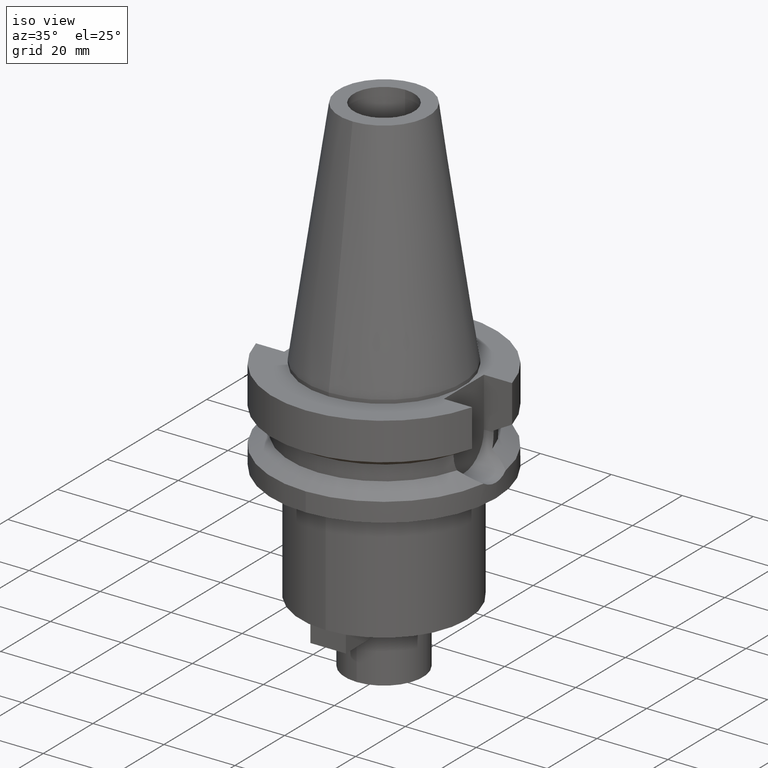
[diagram: clean part render]
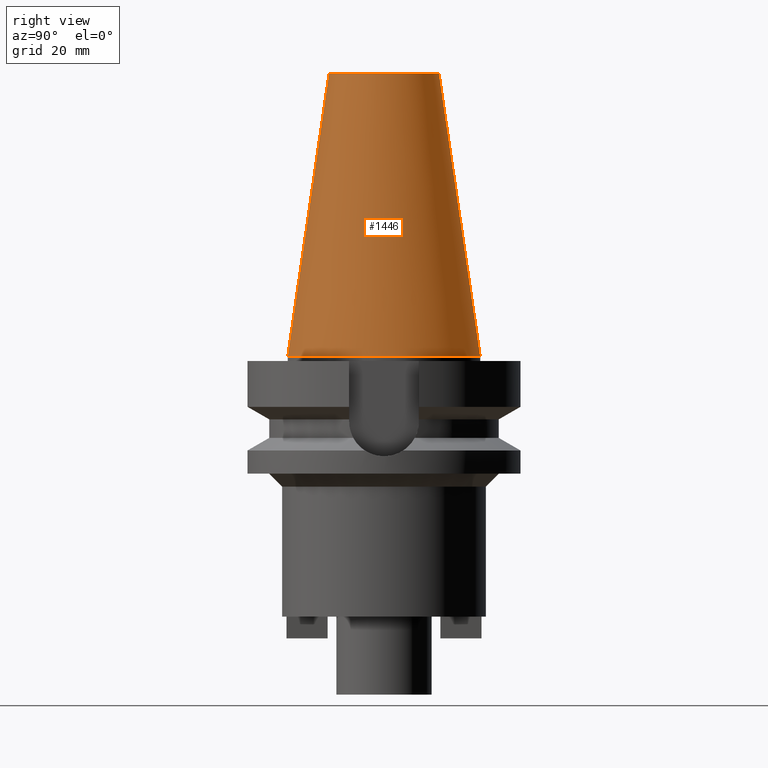
[diagram: tour spotlight — one face highlighted and labeled with its STEP entity id]
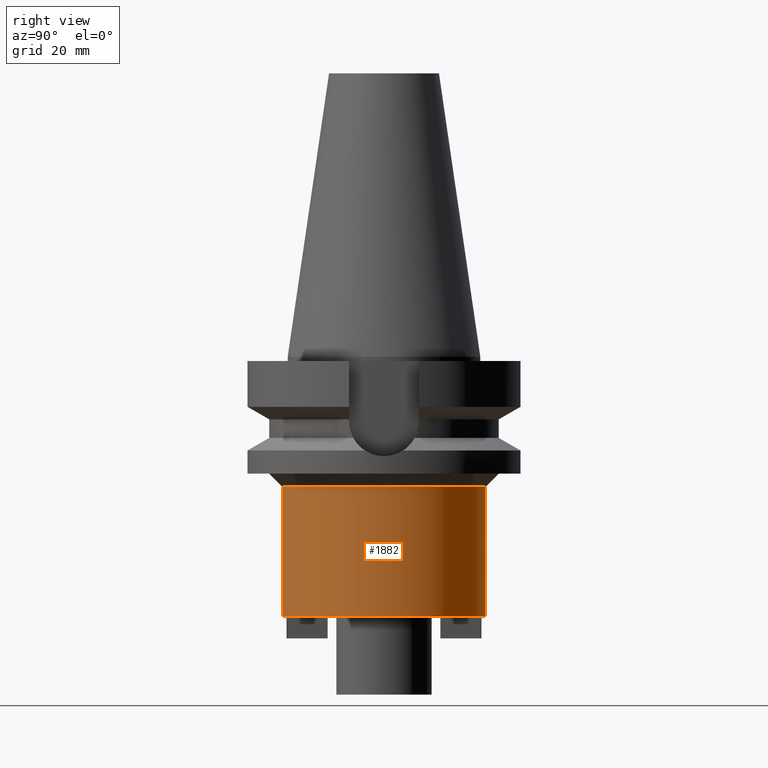
[diagram: tour spotlight — one face highlighted and labeled with its STEP entity id]
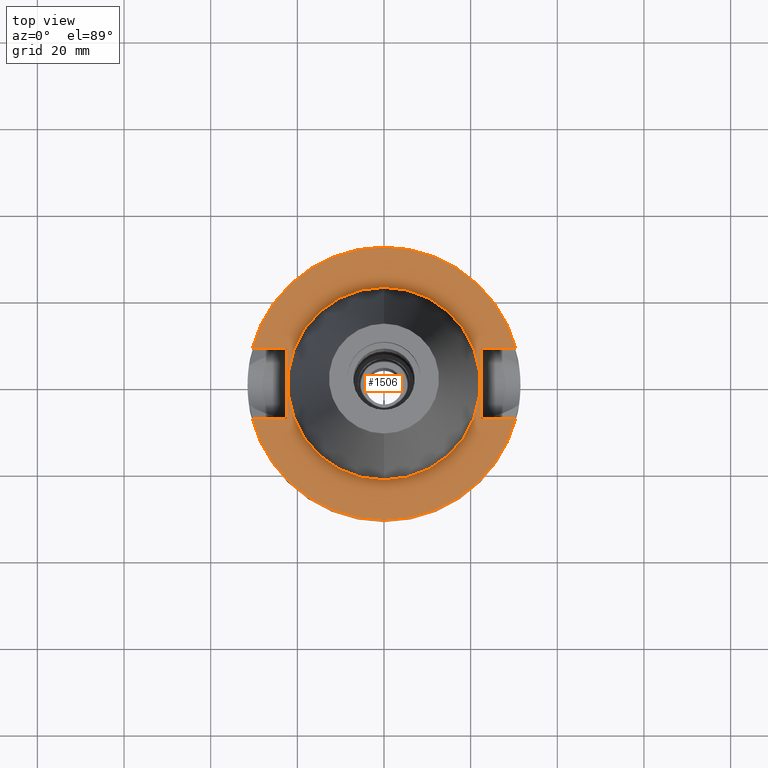
[diagram: tour spotlight — one face highlighted and labeled with its STEP entity id]
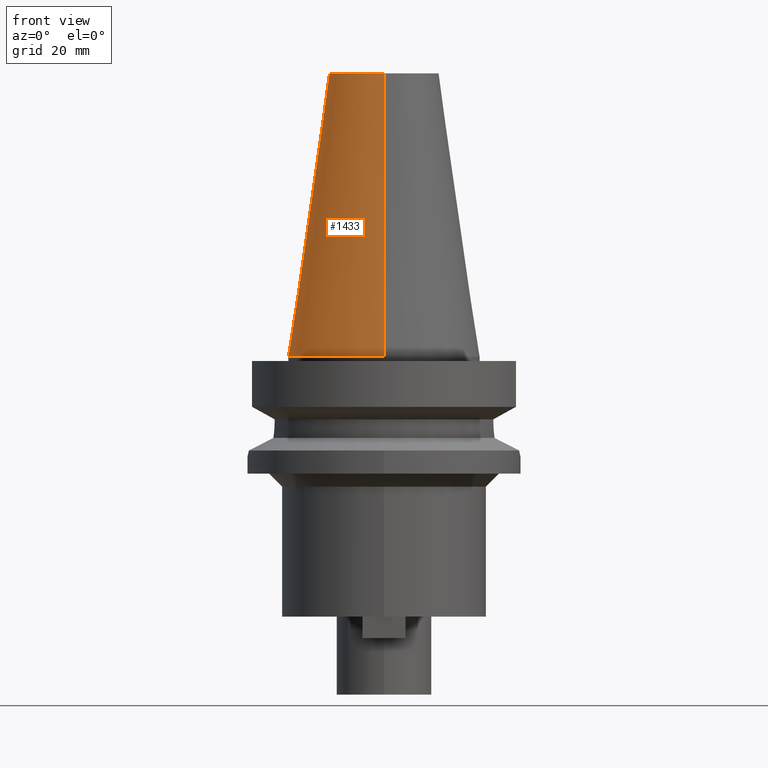
[diagram: tour spotlight — one face highlighted and labeled with its STEP entity id]
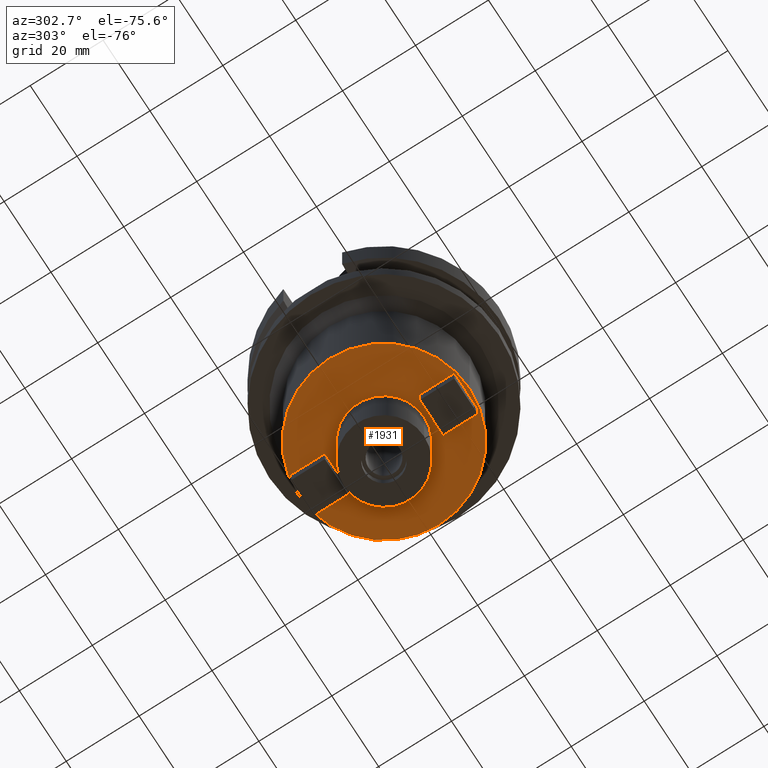
[diagram: tour spotlight — one face highlighted and labeled with its STEP entity id]
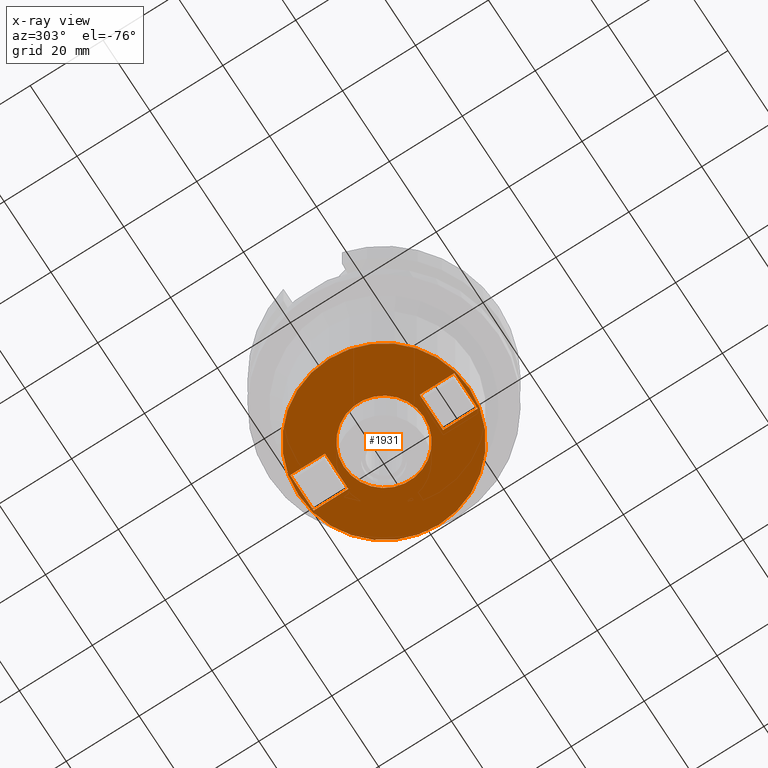
[diagram: x-ray of the same camera — body ghosted, this tour face saturated]
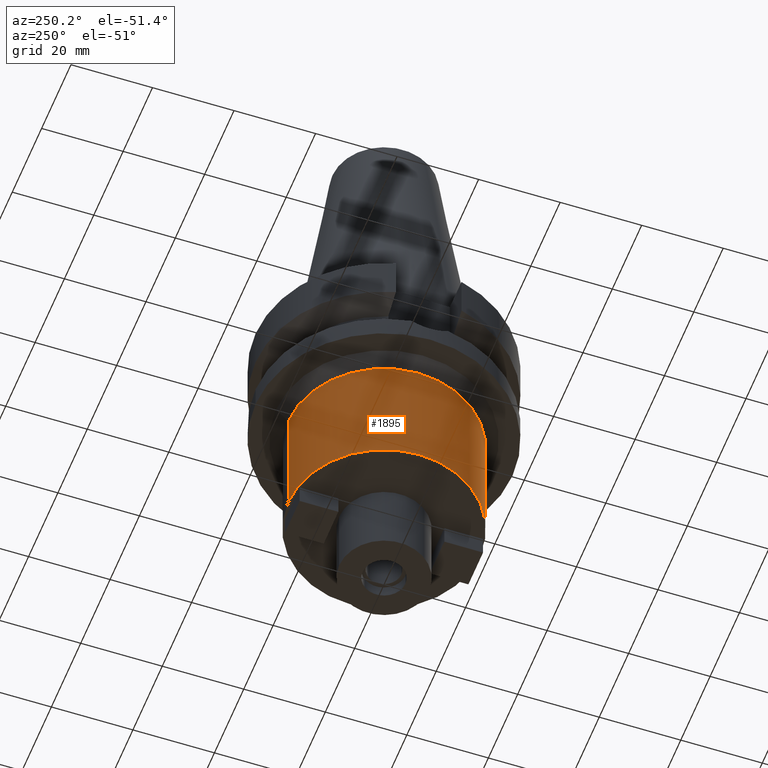
[diagram: tour spotlight — one face highlighted and labeled with its STEP entity id]
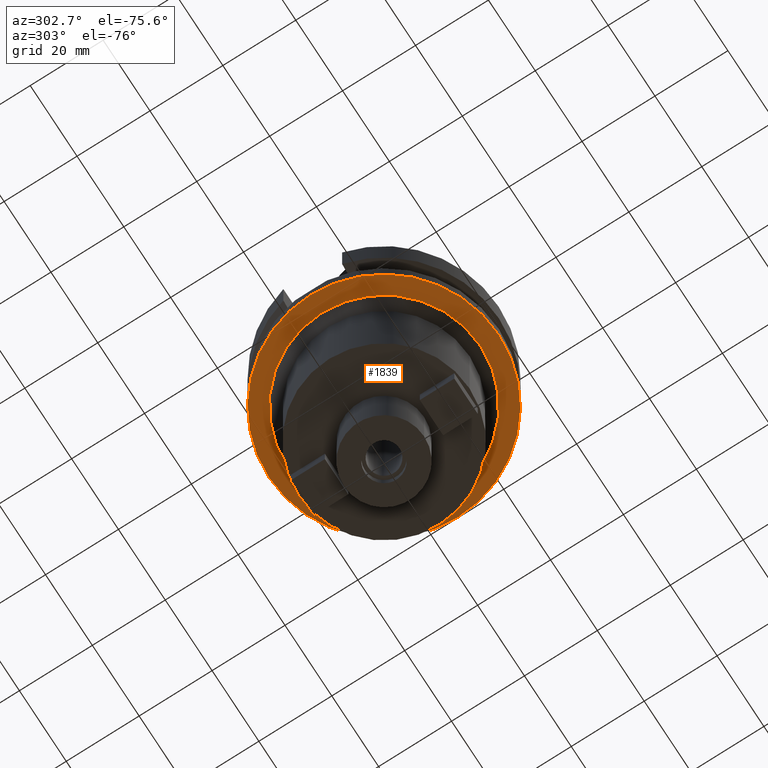
[diagram: tour spotlight — one face highlighted and labeled with its STEP entity id]
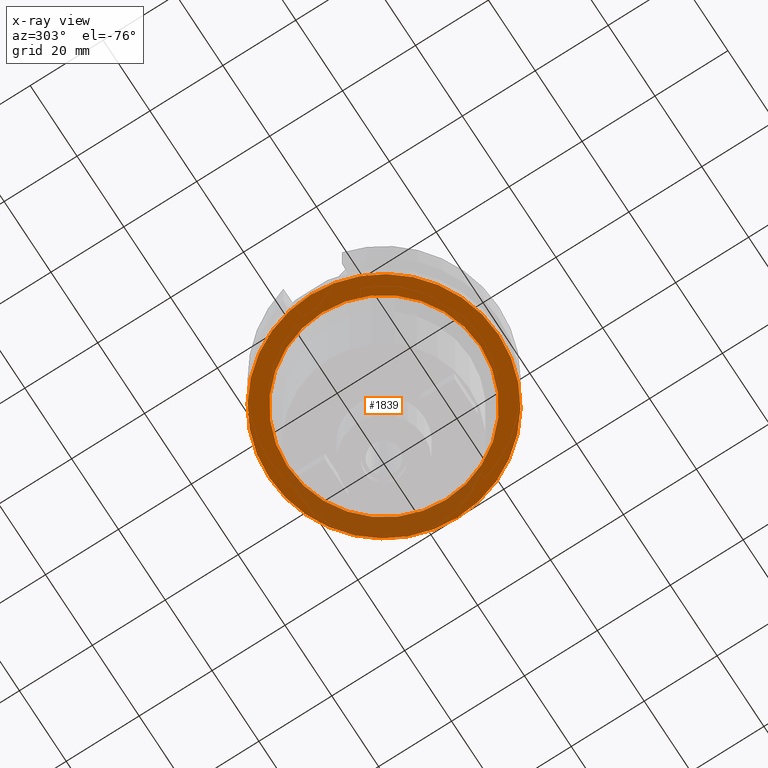
[diagram: x-ray of the same camera — body ghosted, this tour face saturated]
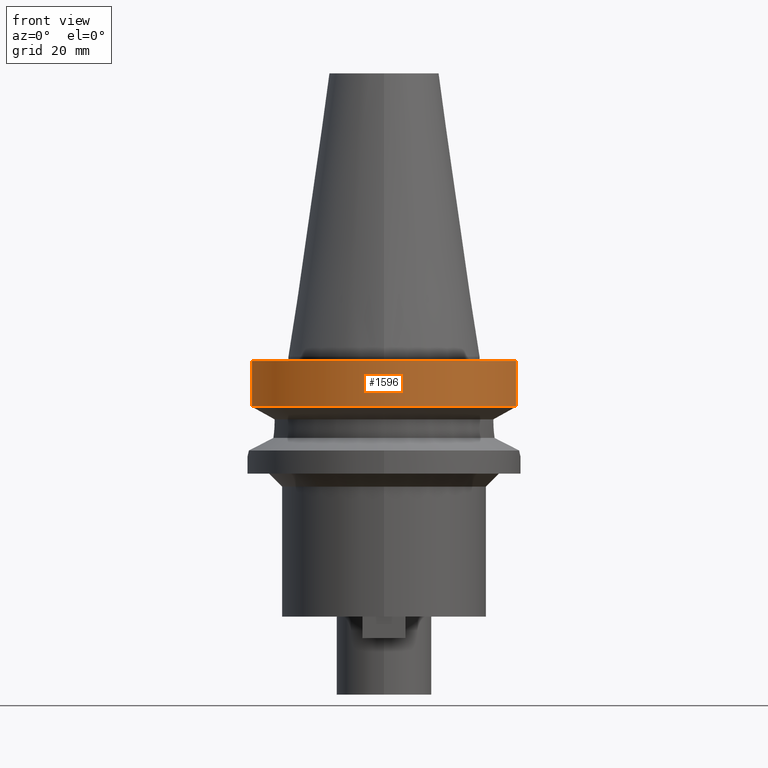
[diagram: tour spotlight — one face highlighted and labeled with its STEP entity id]
A machine part: a face-by-face anatomy tour. The part has 61 B-rep faces; the first image is the clean iso view, then the 8 largest visible faces are spotlighted one at a time (largest first), each with its STEP entity span.

Face 1 — right view, entity #1446. In plain terms, the highlighted conical surface has half-angle 8.297 deg.
Definition (entity closure, byte-faithful):
#26=CARTESIAN_POINT('',(0.E0,1.625106302469E-14,6.54E1));
#27=DIRECTION('',(0.E0,0.E0,-1.E0));
#28=DIRECTION('',(0.E0,1.E0,0.E0));
#29=AXIS2_PLACEMENT_3D('',#26,#27,#28);
#50=DIRECTION('',(0.E0,-1.443043893540E-1,-9.895333461856E-1));
#51=VECTOR('',#50,6.609175956738E1);
#52=CARTESIAN_POINT('',(0.E0,-1.268766899430E1,6.54E1));
#53=LINE('',#52,#51);
#65=DIRECTION('',(0.E0,1.443043893540E-1,-9.895333461856E-1));
#66=VECTOR('',#65,6.609175956738E1);
#67=CARTESIAN_POINT('',(0.E0,1.268766899430E1,6.54E1));
#68=LINE('',#67,#66);
#72=CARTESIAN_POINT('',(0.E0,1.625106302469E-14,0.E0));
#73=DIRECTION('',(0.E0,0.E0,-1.E0));
#74=DIRECTION('',(0.E0,1.E0,0.E0));
#75=AXIS2_PLACEMENT_3D('',#72,#73,#74);
#1208=CARTESIAN_POINT('',(0.E0,-1.268766899430E1,6.54E1));
#1209=CARTESIAN_POINT('',(0.E0,1.268766899430E1,6.54E1));
#1210=VERTEX_POINT('',#1208);
#1211=VERTEX_POINT('',#1209);
#1373=CARTESIAN_POINT('',(0.E0,2.2225E1,5.684341886081E-14));
#1374=VERTEX_POINT('',#1373);
#1375=CARTESIAN_POINT('',(0.E0,-2.2225E1,5.684341886081E-14));
#1376=VERTEX_POINT('',#1375);
#1434=CARTESIAN_POINT('',(0.E0,1.625106302469E-14,3.27E1));
#1435=DIRECTION('',(0.E0,0.E0,-1.E0));
#1436=DIRECTION('',(0.E0,-1.E0,0.E0));
#1437=AXIS2_PLACEMENT_3D('',#1434,#1435,#1436);
#1438=CONICAL_SURFACE('',#1437,1.745633449715E1,8.297E0);
#1439=ORIENTED_EDGE('',*,*,#1424,.T.);
#1441=ORIENTED_EDGE('',*,*,#1440,.T.);
#1442=ORIENTED_EDGE('',*,*,#1427,.F.);
#1443=ORIENTED_EDGE('',*,*,#1408,.F.);
#1444=EDGE_LOOP('',(#1439,#1441,#1442,#1443));
#1445=FACE_OUTER_BOUND('',#1444,.F.);
#30=CIRCLE('',#29,1.268766899430E1);
#76=CIRCLE('',#75,2.2225E1);
#1408=EDGE_CURVE('',#1211,#1210,#30,.T.);
#1424=EDGE_CURVE('',#1211,#1374,#68,.T.);
#1427=EDGE_CURVE('',#1210,#1376,#53,.T.);
#1440=EDGE_CURVE('',#1374,#1376,#76,.T.);
#1446=ADVANCED_FACE('',(#1445),#1438,.T.);

Face 2 — right view, entity #1882. In plain terms, the highlighted cylindrical surface (partial cylindrical patch) has radius 23.5 mm, axis along (0, 0, -1).
Definition (entity closure, byte-faithful):
#682=CARTESIAN_POINT('',(0.E0,0.E0,-3.E1));
#683=DIRECTION('',(0.E0,0.E0,-1.E0));
#684=DIRECTION('',(0.E0,1.E0,0.E0));
#685=AXIS2_PLACEMENT_3D('',#682,#683,#684);
#690=DIRECTION('',(0.E0,0.E0,-1.E0));
#691=VECTOR('',#690,3.E1);
#692=CARTESIAN_POINT('',(0.E0,2.35E1,-3.E1));
#693=LINE('',#692,#691);
#697=DIRECTION('',(0.E0,0.E0,-1.E0));
#698=VECTOR('',#697,3.E1);
#699=CARTESIAN_POINT('',(0.E0,-2.35E1,-3.E1));
#700=LINE('',#699,#698);
#704=CARTESIAN_POINT('',(0.E0,2.113372981289E-14,-6.E1));
#705=DIRECTION('',(0.E0,0.E0,1.E0));
#706=DIRECTION('',(0.E0,-1.E0,0.E0));
#707=AXIS2_PLACEMENT_3D('',#704,#705,#706);
#1268=CARTESIAN_POINT('',(0.E0,-2.35E1,-6.E1));
#1269=CARTESIAN_POINT('',(0.E0,2.35E1,-6.E1));
#1270=VERTEX_POINT('',#1268);
#1271=VERTEX_POINT('',#1269);
#1288=CARTESIAN_POINT('',(0.E0,2.35E1,-3.E1));
#1289=VERTEX_POINT('',#1288);
#1290=CARTESIAN_POINT('',(0.E0,-2.35E1,-3.E1));
#1291=VERTEX_POINT('',#1290);
#1868=CARTESIAN_POINT('',(0.E0,2.113372981289E-14,7.257E1));
#1869=DIRECTION('',(0.E0,0.E0,-1.E0));
#1870=DIRECTION('',(0.E0,-1.E0,0.E0));
#1871=AXIS2_PLACEMENT_3D('',#1868,#1869,#1870);
#1872=CYLINDRICAL_SURFACE('',#1871,2.35E1);
#1874=ORIENTED_EDGE('',*,*,#1873,.T.);
#1876=ORIENTED_EDGE('',*,*,#1875,.F.);
#1878=ORIENTED_EDGE('',*,*,#1877,.F.);
#1879=ORIENTED_EDGE('',*,*,#1861,.F.);
#1880=EDGE_LOOP('',(#1874,#1876,#1878,#1879));
#1881=FACE_OUTER_BOUND('',#1880,.F.);
#686=CIRCLE('',#685,2.35E1);
#708=CIRCLE('',#707,2.35E1);
#1861=EDGE_CURVE('',#1289,#1291,#686,.T.);
#1873=EDGE_CURVE('',#1289,#1271,#693,.T.);
#1875=EDGE_CURVE('',#1270,#1271,#708,.T.);
#1877=EDGE_CURVE('',#1291,#1270,#700,.T.);
#1882=ADVANCED_FACE('',(#1881),#1872,.T.);

Face 3 — top view, entity #1506. In plain terms, the highlighted planar face has unit normal (0, 0, -1).
Definition (entity closure, byte-faithful):
#94=DIRECTION('',(0.E0,1.E0,0.E0));
#95=VECTOR('',#94,1.61E1);
#96=CARTESIAN_POINT('',(-2.25E1,-8.05E0,-1.E0));
#97=LINE('',#96,#95);
#101=DIRECTION('',(-1.E0,-3.550916904668E-14,0.E0));
#102=VECTOR('',#101,7.954022722788E0);
#103=CARTESIAN_POINT('',(-2.25E1,8.05E0,-1.E0));
#104=LINE('',#103,#102);
#108=CARTESIAN_POINT('',(0.E0,2.113372981289E-14,-1.E0));
#109=DIRECTION('',(0.E0,0.E0,-1.E0));
#110=DIRECTION('',(-9.667943721520E-1,2.555555555556E-1,0.E0));
#111=AXIS2_PLACEMENT_3D('',#108,#109,#110);
#116=CARTESIAN_POINT('',(0.E0,2.113372981289E-14,-1.E0));
#117=DIRECTION('',(0.E0,0.E0,-1.E0));
#118=DIRECTION('',(0.E0,1.E0,0.E0));
#119=AXIS2_PLACEMENT_3D('',#116,#117,#118);
#124=DIRECTION('',(0.E0,-1.E0,0.E0));
#125=VECTOR('',#124,1.61E1);
#126=CARTESIAN_POINT('',(2.25E1,8.05E0,-1.E0));
#127=LINE('',#126,#125);
#131=DIRECTION('',(1.E0,3.573249715390E-14,0.E0));
#132=VECTOR('',#131,7.954022722788E0);
#133=CARTESIAN_POINT('',(2.25E1,-8.05E0,-1.E0));
#134=LINE('',#133,#132);
#138=CARTESIAN_POINT('',(0.E0,2.113372981289E-14,-1.E0));
#139=DIRECTION('',(0.E0,0.E0,-1.E0));
#140=DIRECTION('',(9.667943721520E-1,-2.555555555556E-1,0.E0));
#141=AXIS2_PLACEMENT_3D('',#138,#139,#140);
#146=CARTESIAN_POINT('',(0.E0,2.113372981289E-14,-1.E0));
#147=DIRECTION('',(0.E0,0.E0,-1.E0));
#148=DIRECTION('',(0.E0,-1.E0,0.E0));
#149=AXIS2_PLACEMENT_3D('',#146,#147,#148);
#154=CARTESIAN_POINT('',(0.E0,2.113372981289E-14,-1.E0));
#155=DIRECTION('',(0.E0,0.E0,1.E0));
#156=DIRECTION('',(0.E0,-1.E0,0.E0));
#157=AXIS2_PLACEMENT_3D('',#154,#155,#156);
#162=CARTESIAN_POINT('',(0.E0,2.113372981289E-14,-1.E0));
#163=DIRECTION('',(0.E0,0.E0,1.E0));
#164=DIRECTION('',(0.E0,1.E0,0.E0));
#165=AXIS2_PLACEMENT_3D('',#162,#163,#164);
#200=DIRECTION('',(-1.E0,3.550916904668E-14,0.E0));
#201=VECTOR('',#200,7.954022722788E0);
#202=CARTESIAN_POINT('',(-2.25E1,-8.05E0,-1.E0));
#203=LINE('',#202,#201);
#337=DIRECTION('',(1.E0,-3.506251283226E-14,0.E0));
#338=VECTOR('',#337,7.954022722788E0);
#339=CARTESIAN_POINT('',(2.25E1,8.05E0,-1.E0));
#340=LINE('',#339,#338);
#1347=CARTESIAN_POINT('',(-2.25E1,-8.05E0,-1.E0));
#1348=VERTEX_POINT('',#1347);
#1349=CARTESIAN_POINT('',(-3.045402272279E1,-8.05E0,-1.E0));
#1350=VERTEX_POINT('',#1349);
#1353=CARTESIAN_POINT('',(-2.25E1,8.05E0,-1.E0));
#1354=VERTEX_POINT('',#1353);
#1355=CARTESIAN_POINT('',(-3.045402272279E1,8.05E0,-1.E0));
#1356=VERTEX_POINT('',#1355);
#1357=CARTESIAN_POINT('',(-3.317447654708E-14,3.15E1,-1.E0));
#1358=CARTESIAN_POINT('',(3.045402272279E1,8.05E0,-1.E0));
#1359=VERTEX_POINT('',#1357);
#1360=VERTEX_POINT('',#1358);
#1361=CARTESIAN_POINT('',(2.25E1,8.05E0,-1.E0));
#1362=VERTEX_POINT('',#1361);
#1363=CARTESIAN_POINT('',(2.25E1,-8.05E0,-1.E0));
#1364=VERTEX_POINT('',#1363);
#1365=CARTESIAN_POINT('',(3.045402272279E1,-8.05E0,-1.E0));
#1366=VERTEX_POINT('',#1365);
#1367=CARTESIAN_POINT('',(3.317447654708E-14,-3.15E1,-1.E0));
#1368=VERTEX_POINT('',#1367);
#1369=CARTESIAN_POINT('',(0.E0,-2.2225E1,-1.E0));
#1370=CARTESIAN_POINT('',(0.E0,2.2225E1,-1.E0));
#1371=VERTEX_POINT('',#1369);
#1372=VERTEX_POINT('',#1370);
#1475=CARTESIAN_POINT('',(0.E0,1.212400331156E-14,-1.E0));
#1476=DIRECTION('',(0.E0,0.E0,-1.E0));
#1477=DIRECTION('',(0.E0,-1.E0,0.E0));
#1478=AXIS2_PLACEMENT_3D('',#1475,#1476,#1477);
#1479=PLANE('',#1478);
#1481=ORIENTED_EDGE('',*,*,#1480,.T.);
#1483=ORIENTED_EDGE('',*,*,#1482,.T.);
#1485=ORIENTED_EDGE('',*,*,#1484,.T.);
#1487=ORIENTED_EDGE('',*,*,#1486,.T.);
#1489=ORIENTED_EDGE('',*,*,#1488,.F.);
#1491=ORIENTED_EDGE('',*,*,#1490,.T.);
#1493=ORIENTED_EDGE('',*,*,#1492,.T.);
#1495=ORIENTED_EDGE('',*,*,#1494,.T.);
#1497=ORIENTED_EDGE('',*,*,#1496,.T.);
#1499=ORIENTED_EDGE('',*,*,#1498,.F.);
#1500=EDGE_LOOP('',(#1481,#1483,#1485,#1487,#1489,#1491,#1493,#1495,#1497,
#1499));
#1501=FACE_OUTER_BOUND('',#1500,.F.);
#1502=ORIENTED_EDGE('',*,*,#1454,.T.);
#1503=ORIENTED_EDGE('',*,*,#1470,.T.);
#1504=EDGE_LOOP('',(#1502,#1503));
#1505=FACE_BOUND('',#1504,.F.);
#112=CIRCLE('',#111,3.15E1);
#120=CIRCLE('',#119,3.15E1);
#142=CIRCLE('',#141,3.15E1);
#150=CIRCLE('',#149,3.15E1);
#158=CIRCLE('',#157,2.2225E1);
#166=CIRCLE('',#165,2.2225E1);
#1454=EDGE_CURVE('',#1371,#1372,#158,.T.);
#1470=EDGE_CURVE('',#1372,#1371,#166,.T.);
#1480=EDGE_CURVE('',#1348,#1354,#97,.T.);
#1482=EDGE_CURVE('',#1354,#1356,#104,.T.);
#1484=EDGE_CURVE('',#1356,#1359,#112,.T.);
#1486=EDGE_CURVE('',#1359,#1360,#120,.T.);
#1488=EDGE_CURVE('',#1362,#1360,#340,.T.);
#1490=EDGE_CURVE('',#1362,#1364,#127,.T.);
#1492=EDGE_CURVE('',#1364,#1366,#134,.T.);
#1494=EDGE_CURVE('',#1366,#1368,#142,.T.);
#1496=EDGE_CURVE('',#1368,#1350,#150,.T.);
#1498=EDGE_CURVE('',#1348,#1350,#203,.T.);
#1506=ADVANCED_FACE('',(#1501,#1505),#1479,.F.);

Face 4 — front view, entity #1433. In plain terms, the highlighted conical surface has half-angle 8.297 deg.
Definition (entity closure, byte-faithful):
#17=CARTESIAN_POINT('',(0.E0,1.625106302469E-14,6.54E1));
#18=DIRECTION('',(0.E0,0.E0,-1.E0));
#19=DIRECTION('',(0.E0,-1.E0,0.E0));
#20=AXIS2_PLACEMENT_3D('',#17,#18,#19);
#50=DIRECTION('',(0.E0,-1.443043893540E-1,-9.895333461856E-1));
#51=VECTOR('',#50,6.609175956738E1);
#52=CARTESIAN_POINT('',(0.E0,-1.268766899430E1,6.54E1));
#53=LINE('',#52,#51);
#57=CARTESIAN_POINT('',(0.E0,1.625106302469E-14,0.E0));
#58=DIRECTION('',(0.E0,0.E0,-1.E0));
#59=DIRECTION('',(0.E0,-1.E0,0.E0));
#60=AXIS2_PLACEMENT_3D('',#57,#58,#59);
#65=DIRECTION('',(0.E0,1.443043893540E-1,-9.895333461856E-1));
#66=VECTOR('',#65,6.609175956738E1);
#67=CARTESIAN_POINT('',(0.E0,1.268766899430E1,6.54E1));
#68=LINE('',#67,#66);
#1208=CARTESIAN_POINT('',(0.E0,-1.268766899430E1,6.54E1));
#1209=CARTESIAN_POINT('',(0.E0,1.268766899430E1,6.54E1));
#1210=VERTEX_POINT('',#1208);
#1211=VERTEX_POINT('',#1209);
#1373=CARTESIAN_POINT('',(0.E0,2.2225E1,5.684341886081E-14));
#1374=VERTEX_POINT('',#1373);
#1375=CARTESIAN_POINT('',(0.E0,-2.2225E1,5.684341886081E-14));
#1376=VERTEX_POINT('',#1375);
#1419=CARTESIAN_POINT('',(0.E0,1.625106302469E-14,3.27E1));
#1420=DIRECTION('',(0.E0,0.E0,-1.E0));
#1421=DIRECTION('',(0.E0,-1.E0,0.E0));
#1422=AXIS2_PLACEMENT_3D('',#1419,#1420,#1421);
#1423=CONICAL_SURFACE('',#1422,1.745633449715E1,8.297E0);
#1425=ORIENTED_EDGE('',*,*,#1424,.F.);
#1426=ORIENTED_EDGE('',*,*,#1406,.F.);
#1428=ORIENTED_EDGE('',*,*,#1427,.T.);
#1430=ORIENTED_EDGE('',*,*,#1429,.T.);
#1431=EDGE_LOOP('',(#1425,#1426,#1428,#1430));
#1432=FACE_OUTER_BOUND('',#1431,.F.);
#21=CIRCLE('',#20,1.268766899430E1);
#61=CIRCLE('',#60,2.2225E1);
#1406=EDGE_CURVE('',#1210,#1211,#21,.T.);
#1424=EDGE_CURVE('',#1211,#1374,#68,.T.);
#1427=EDGE_CURVE('',#1210,#1376,#53,.T.);
#1429=EDGE_CURVE('',#1376,#1374,#61,.T.);
#1433=ADVANCED_FACE('',(#1432),#1423,.T.);

Face 5 — auxiliary view, entity #1931. An x-ray twin of the same camera follows (body ghosted, this face saturated) — the face is partly hidden behind the body. In plain terms, the highlighted planar face has unit normal (0, 0, -1).
Definition (entity closure, byte-faithful):
#704=CARTESIAN_POINT('',(0.E0,2.113372981289E-14,-6.E1));
#705=DIRECTION('',(0.E0,0.E0,1.E0));
#706=DIRECTION('',(0.E0,-1.E0,0.E0));
#707=AXIS2_PLACEMENT_3D('',#704,#705,#706);
#712=CARTESIAN_POINT('',(0.E0,2.113372981289E-14,-6.E1));
#713=DIRECTION('',(0.E0,0.E0,1.E0));
#714=DIRECTION('',(0.E0,1.E0,0.E0));
#715=AXIS2_PLACEMENT_3D('',#712,#713,#714);
#720=CARTESIAN_POINT('',(0.E0,2.113372981289E-14,-6.E1));
#721=DIRECTION('',(0.E0,0.E0,-1.E0));
#722=DIRECTION('',(0.E0,-1.E0,0.E0));
#723=AXIS2_PLACEMENT_3D('',#720,#721,#722);
#728=CARTESIAN_POINT('',(0.E0,2.113372981289E-14,-6.E1));
#729=DIRECTION('',(0.E0,0.E0,-1.E0));
#730=DIRECTION('',(0.E0,1.E0,0.E0));
#731=AXIS2_PLACEMENT_3D('',#728,#729,#730);
#736=DIRECTION('',(0.E0,1.E0,0.E0));
#737=VECTOR('',#736,9.5E0);
#738=CARTESIAN_POINT('',(-5.E0,1.3E1,-6.E1));
#739=LINE('',#738,#737);
#743=DIRECTION('',(-1.E0,0.E0,0.E0));
#744=VECTOR('',#743,1.E1);
#745=CARTESIAN_POINT('',(5.E0,1.3E1,-6.E1));
#746=LINE('',#745,#744);
#750=DIRECTION('',(0.E0,-1.E0,0.E0));
#751=VECTOR('',#750,9.5E0);
#752=CARTESIAN_POINT('',(5.E0,-1.3E1,-6.E1));
#753=LINE('',#752,#751);
#757=DIRECTION('',(1.E0,0.E0,0.E0));
#758=VECTOR('',#757,1.E1);
#759=CARTESIAN_POINT('',(-5.E0,-1.3E1,-6.E1));
#760=LINE('',#759,#758);
#1082=DIRECTION('',(0.E0,1.E0,0.E0));
#1083=VECTOR('',#1082,9.5E0);
#1084=CARTESIAN_POINT('',(5.E0,1.3E1,-6.E1));
#1085=LINE('',#1084,#1083);
#1110=DIRECTION('',(-1.E0,0.E0,0.E0));
#1111=VECTOR('',#1110,1.E1);
#1112=CARTESIAN_POINT('',(5.E0,2.25E1,-6.E1));
#1113=LINE('',#1112,#1111);
#1152=DIRECTION('',(0.E0,-1.E0,0.E0));
#1153=VECTOR('',#1152,9.5E0);
#1154=CARTESIAN_POINT('',(-5.E0,-1.3E1,-6.E1));
#1155=LINE('',#1154,#1153);
#1180=DIRECTION('',(1.E0,0.E0,0.E0));
#1181=VECTOR('',#1180,1.E1);
#1182=CARTESIAN_POINT('',(-5.E0,-2.25E1,-6.E1));
#1183=LINE('',#1182,#1181);
#1264=CARTESIAN_POINT('',(0.E0,1.1E1,-6.E1));
#1265=VERTEX_POINT('',#1264);
#1266=CARTESIAN_POINT('',(0.E0,-1.1E1,-6.E1));
#1267=VERTEX_POINT('',#1266);
#1268=CARTESIAN_POINT('',(0.E0,-2.35E1,-6.E1));
#1269=CARTESIAN_POINT('',(0.E0,2.35E1,-6.E1));
#1270=VERTEX_POINT('',#1268);
#1271=VERTEX_POINT('',#1269);
#1272=CARTESIAN_POINT('',(-5.E0,1.3E1,-6.E1));
#1273=CARTESIAN_POINT('',(-5.E0,2.25E1,-6.E1));
#1274=VERTEX_POINT('',#1272);
#1275=VERTEX_POINT('',#1273);
#1276=CARTESIAN_POINT('',(5.E0,2.25E1,-6.E1));
#1277=VERTEX_POINT('',#1276);
#1278=CARTESIAN_POINT('',(5.E0,1.3E1,-6.E1));
#1279=VERTEX_POINT('',#1278);
#1280=CARTESIAN_POINT('',(5.E0,-1.3E1,-6.E1));
#1281=CARTESIAN_POINT('',(5.E0,-2.25E1,-6.E1));
#1282=VERTEX_POINT('',#1280);
#1283=VERTEX_POINT('',#1281);
#1284=CARTESIAN_POINT('',(-5.E0,-2.25E1,-6.E1));
#1285=VERTEX_POINT('',#1284);
#1286=CARTESIAN_POINT('',(-5.E0,-1.3E1,-6.E1));
#1287=VERTEX_POINT('',#1286);
#1896=CARTESIAN_POINT('',(0.E0,0.E0,-6.E1));
#1897=DIRECTION('',(0.E0,0.E0,-1.E0));
#1898=DIRECTION('',(0.E0,-1.E0,0.E0));
#1899=AXIS2_PLACEMENT_3D('',#1896,#1897,#1898);
#1900=PLANE('',#1899);
#1901=ORIENTED_EDGE('',*,*,#1875,.T.);
#1902=ORIENTED_EDGE('',*,*,#1891,.T.);
#1903=EDGE_LOOP('',(#1901,#1902));
#1904=FACE_OUTER_BOUND('',#1903,.F.);
#1906=ORIENTED_EDGE('',*,*,#1905,.T.);
#1908=ORIENTED_EDGE('',*,*,#1907,.T.);
#1909=EDGE_LOOP('',(#1906,#1908));
#1910=FACE_BOUND('',#1909,.F.);
#1912=ORIENTED_EDGE('',*,*,#1911,.T.);
#1914=ORIENTED_EDGE('',*,*,#1913,.F.);
#1916=ORIENTED_EDGE('',*,*,#1915,.F.);
#1918=ORIENTED_EDGE('',*,*,#1917,.T.);
#1919=EDGE_LOOP('',(#1912,#1914,#1916,#1918));
#1920=FACE_BOUND('',#1919,.F.);
#1922=ORIENTED_EDGE('',*,*,#1921,.T.);
#1924=ORIENTED_EDGE('',*,*,#1923,.F.);
#1926=ORIENTED_EDGE('',*,*,#1925,.F.);
#1928=ORIENTED_EDGE('',*,*,#1927,.T.);
#1929=EDGE_LOOP('',(#1922,#1924,#1926,#1928));
#1930=FACE_BOUND('',#1929,.F.);
#708=CIRCLE('',#707,2.35E1);
#716=CIRCLE('',#715,2.35E1);
#724=CIRCLE('',#723,1.1E1);
#732=CIRCLE('',#731,1.1E1);
#1875=EDGE_CURVE('',#1270,#1271,#708,.T.);
#1891=EDGE_CURVE('',#1271,#1270,#716,.T.);
#1905=EDGE_CURVE('',#1267,#1265,#724,.T.);
#1907=EDGE_CURVE('',#1265,#1267,#732,.T.);
#1911=EDGE_CURVE('',#1274,#1275,#739,.T.);
#1913=EDGE_CURVE('',#1277,#1275,#1113,.T.);
#1915=EDGE_CURVE('',#1279,#1277,#1085,.T.);
#1917=EDGE_CURVE('',#1279,#1274,#746,.T.);
#1921=EDGE_CURVE('',#1282,#1283,#753,.T.);
#1923=EDGE_CURVE('',#1285,#1283,#1183,.T.);
#1925=EDGE_CURVE('',#1287,#1285,#1155,.T.);
#1927=EDGE_CURVE('',#1287,#1282,#760,.T.);
#1931=ADVANCED_FACE('',(#1904,#1910,#1920,#1930),#1900,.T.);

Face 6 — auxiliary view, entity #1895. In plain terms, the highlighted cylindrical surface (partial cylindrical patch) has radius 23.5 mm, axis along (0, 0, -1).
Definition (entity closure, byte-faithful):
#667=CARTESIAN_POINT('',(0.E0,0.E0,-3.E1));
#668=DIRECTION('',(0.E0,0.E0,-1.E0));
#669=DIRECTION('',(0.E0,-1.E0,0.E0));
#670=AXIS2_PLACEMENT_3D('',#667,#668,#669);
#690=DIRECTION('',(0.E0,0.E0,-1.E0));
#691=VECTOR('',#690,3.E1);
#692=CARTESIAN_POINT('',(0.E0,2.35E1,-3.E1));
#693=LINE('',#692,#691);
#697=DIRECTION('',(0.E0,0.E0,-1.E0));
#698=VECTOR('',#697,3.E1);
#699=CARTESIAN_POINT('',(0.E0,-2.35E1,-3.E1));
#700=LINE('',#699,#698);
#712=CARTESIAN_POINT('',(0.E0,2.113372981289E-14,-6.E1));
#713=DIRECTION('',(0.E0,0.E0,1.E0));
#714=DIRECTION('',(0.E0,1.E0,0.E0));
#715=AXIS2_PLACEMENT_3D('',#712,#713,#714);
#1268=CARTESIAN_POINT('',(0.E0,-2.35E1,-6.E1));
#1269=CARTESIAN_POINT('',(0.E0,2.35E1,-6.E1));
#1270=VERTEX_POINT('',#1268);
#1271=VERTEX_POINT('',#1269);
#1288=CARTESIAN_POINT('',(0.E0,2.35E1,-3.E1));
#1289=VERTEX_POINT('',#1288);
#1290=CARTESIAN_POINT('',(0.E0,-2.35E1,-3.E1));
#1291=VERTEX_POINT('',#1290);
#1883=CARTESIAN_POINT('',(0.E0,2.113372981289E-14,7.257E1));
#1884=DIRECTION('',(0.E0,0.E0,-1.E0));
#1885=DIRECTION('',(0.E0,-1.E0,0.E0));
#1886=AXIS2_PLACEMENT_3D('',#1883,#1884,#1885);
#1887=CYLINDRICAL_SURFACE('',#1886,2.35E1);
#1888=ORIENTED_EDGE('',*,*,#1873,.F.);
#1889=ORIENTED_EDGE('',*,*,#1850,.F.);
#1890=ORIENTED_EDGE('',*,*,#1877,.T.);
#1892=ORIENTED_EDGE('',*,*,#1891,.F.);
#1893=EDGE_LOOP('',(#1888,#1889,#1890,#1892));
#1894=FACE_OUTER_BOUND('',#1893,.F.);
#671=CIRCLE('',#670,2.35E1);
#716=CIRCLE('',#715,2.35E1);
#1850=EDGE_CURVE('',#1291,#1289,#671,.T.);
#1873=EDGE_CURVE('',#1289,#1271,#693,.T.);
#1877=EDGE_CURVE('',#1291,#1270,#700,.T.);
#1891=EDGE_CURVE('',#1271,#1270,#716,.T.);
#1895=ADVANCED_FACE('',(#1894),#1887,.T.);

Face 7 — auxiliary view, entity #1839. An x-ray twin of the same camera follows (body ghosted, this face saturated) — the face is partly hidden behind the body. In plain terms, the highlighted planar face has unit normal (0, 0, -1).
Definition (entity closure, byte-faithful):
#628=CARTESIAN_POINT('',(0.E0,2.113372981289E-14,-2.7E1));
#629=DIRECTION('',(0.E0,0.E0,1.E0));
#630=DIRECTION('',(0.E0,-1.E0,0.E0));
#631=AXIS2_PLACEMENT_3D('',#628,#629,#630);
#636=CARTESIAN_POINT('',(0.E0,2.113372981289E-14,-2.7E1));
#637=DIRECTION('',(0.E0,0.E0,1.E0));
#638=DIRECTION('',(0.E0,1.E0,0.E0));
#639=AXIS2_PLACEMENT_3D('',#636,#637,#638);
#644=CARTESIAN_POINT('',(0.E0,0.E0,-2.7E1));
#645=DIRECTION('',(0.E0,0.E0,-1.E0));
#646=DIRECTION('',(0.E0,-1.E0,0.E0));
#647=AXIS2_PLACEMENT_3D('',#644,#645,#646);
#652=CARTESIAN_POINT('',(0.E0,0.E0,-2.7E1));
#653=DIRECTION('',(0.E0,0.E0,-1.E0));
#654=DIRECTION('',(0.E0,1.E0,0.E0));
#655=AXIS2_PLACEMENT_3D('',#652,#653,#654);
#1292=CARTESIAN_POINT('',(0.E0,2.65E1,-2.7E1));
#1293=VERTEX_POINT('',#1292);
#1294=CARTESIAN_POINT('',(0.E0,-2.65E1,-2.7E1));
#1295=VERTEX_POINT('',#1294);
#1296=CARTESIAN_POINT('',(0.E0,-3.15E1,-2.7E1));
#1297=CARTESIAN_POINT('',(0.E0,3.15E1,-2.7E1));
#1298=VERTEX_POINT('',#1296);
#1299=VERTEX_POINT('',#1297);
#1824=CARTESIAN_POINT('',(0.E0,0.E0,-2.7E1));
#1825=DIRECTION('',(0.E0,0.E0,-1.E0));
#1826=DIRECTION('',(0.E0,-1.E0,0.E0));
#1827=AXIS2_PLACEMENT_3D('',#1824,#1825,#1826);
#1828=PLANE('',#1827);
#1829=ORIENTED_EDGE('',*,*,#1786,.T.);
#1830=ORIENTED_EDGE('',*,*,#1817,.T.);
#1831=EDGE_LOOP('',(#1829,#1830));
#1832=FACE_OUTER_BOUND('',#1831,.F.);
#1834=ORIENTED_EDGE('',*,*,#1833,.T.);
#1836=ORIENTED_EDGE('',*,*,#1835,.T.);
#1837=EDGE_LOOP('',(#1834,#1836));
#1838=FACE_BOUND('',#1837,.F.);
#632=CIRCLE('',#631,3.15E1);
#640=CIRCLE('',#639,3.15E1);
#648=CIRCLE('',#647,2.65E1);
#656=CIRCLE('',#655,2.65E1);
#1786=EDGE_CURVE('',#1298,#1299,#632,.T.);
#1817=EDGE_CURVE('',#1299,#1298,#640,.T.);
#1833=EDGE_CURVE('',#1295,#1293,#648,.T.);
#1835=EDGE_CURVE('',#1293,#1295,#656,.T.);
#1839=ADVANCED_FACE('',(#1832,#1838),#1828,.T.);

Face 8 — front view, entity #1596. In plain terms, the highlighted cylindrical surface (partial cylindrical patch) has radius 31.5 mm, axis along (0, 0, -1).
Definition (entity closure, byte-faithful):
#138=CARTESIAN_POINT('',(0.E0,2.113372981289E-14,-1.E0));
#139=DIRECTION('',(0.E0,0.E0,-1.E0));
#140=DIRECTION('',(9.667943721520E-1,-2.555555555556E-1,0.E0));
#141=AXIS2_PLACEMENT_3D('',#138,#139,#140);
#146=CARTESIAN_POINT('',(0.E0,2.113372981289E-14,-1.E0));
#147=DIRECTION('',(0.E0,0.E0,-1.E0));
#148=DIRECTION('',(0.E0,-1.E0,0.E0));
#149=AXIS2_PLACEMENT_3D('',#146,#147,#148);
#251=CARTESIAN_POINT('',(0.E0,1.065333950388E-14,-1.156550565267E1));
#252=DIRECTION('',(0.E0,0.E0,1.E0));
#253=DIRECTION('',(-9.667943721520E-1,-2.555555555555E-1,0.E0));
#254=AXIS2_PLACEMENT_3D('',#251,#252,#253);
#259=CARTESIAN_POINT('',(0.E0,1.065333950388E-14,-1.156550565267E1));
#260=DIRECTION('',(0.E0,0.E0,1.E0));
#261=DIRECTION('',(0.E0,-1.E0,0.E0));
#262=AXIS2_PLACEMENT_3D('',#259,#260,#261);
#283=DIRECTION('',(1.813147789242E-8,-6.859358174429E-8,1.E0));
#284=VECTOR('',#283,1.056551218013E1);
#285=CARTESIAN_POINT('',(-3.045402291436E1,-8.049999275273E0,
-1.156551218013E1));
#286=LINE('',#285,#284);
#290=DIRECTION('',(-1.038358284549E-7,-3.928216605542E-7,-9.999999999999E-1));
#291=VECTOR('',#290,1.056546826814E1);
#292=CARTESIAN_POINT('',(3.045402272279E1,-8.05E0,-1.E0));
#293=LINE('',#292,#291);
#1349=CARTESIAN_POINT('',(-3.045402272279E1,-8.05E0,-1.E0));
#1350=VERTEX_POINT('',#1349);
#1351=CARTESIAN_POINT('',(-3.045402291436E1,-8.049999275273E0,
-1.156551218013E1));
#1352=VERTEX_POINT('',#1351);
#1365=CARTESIAN_POINT('',(3.045402272279E1,-8.05E0,-1.E0));
#1366=VERTEX_POINT('',#1365);
#1367=CARTESIAN_POINT('',(3.317447654708E-14,-3.15E1,-1.E0));
#1368=VERTEX_POINT('',#1367);
#1378=CARTESIAN_POINT('',(0.E0,-3.15E1,-1.156550565267E1));
#1379=CARTESIAN_POINT('',(3.045402272279E1,-8.049999999999E0,
-1.156550565267E1));
#1380=VERTEX_POINT('',#1378);
#1381=VERTEX_POINT('',#1379);
#1582=CARTESIAN_POINT('',(0.E0,2.113372981289E-14,7.257E1));
#1583=DIRECTION('',(0.E0,0.E0,-1.E0));
#1584=DIRECTION('',(0.E0,-1.E0,0.E0));
#1585=AXIS2_PLACEMENT_3D('',#1582,#1583,#1584);
#1586=CYLINDRICAL_SURFACE('',#1585,3.15E1);
#1587=ORIENTED_EDGE('',*,*,#1535,.T.);
#1588=ORIENTED_EDGE('',*,*,#1496,.F.);
#1589=ORIENTED_EDGE('',*,*,#1494,.F.);
#1591=ORIENTED_EDGE('',*,*,#1590,.T.);
#1592=ORIENTED_EDGE('',*,*,#1573,.F.);
#1593=ORIENTED_EDGE('',*,*,#1571,.F.);
#1594=EDGE_LOOP('',(#1587,#1588,#1589,#1591,#1592,#1593));
#1595=FACE_OUTER_BOUND('',#1594,.F.);
#142=CIRCLE('',#141,3.15E1);
#150=CIRCLE('',#149,3.15E1);
#255=CIRCLE('',#254,3.15E1);
#263=CIRCLE('',#262,3.15E1);
#1494=EDGE_CURVE('',#1366,#1368,#142,.T.);
#1496=EDGE_CURVE('',#1368,#1350,#150,.T.);
#1535=EDGE_CURVE('',#1352,#1350,#286,.T.);
#1571=EDGE_CURVE('',#1352,#1380,#255,.T.);
#1573=EDGE_CURVE('',#1380,#1381,#263,.T.);
#1590=EDGE_CURVE('',#1366,#1381,#293,.T.);
#1596=ADVANCED_FACE('',(#1595),#1586,.T.);